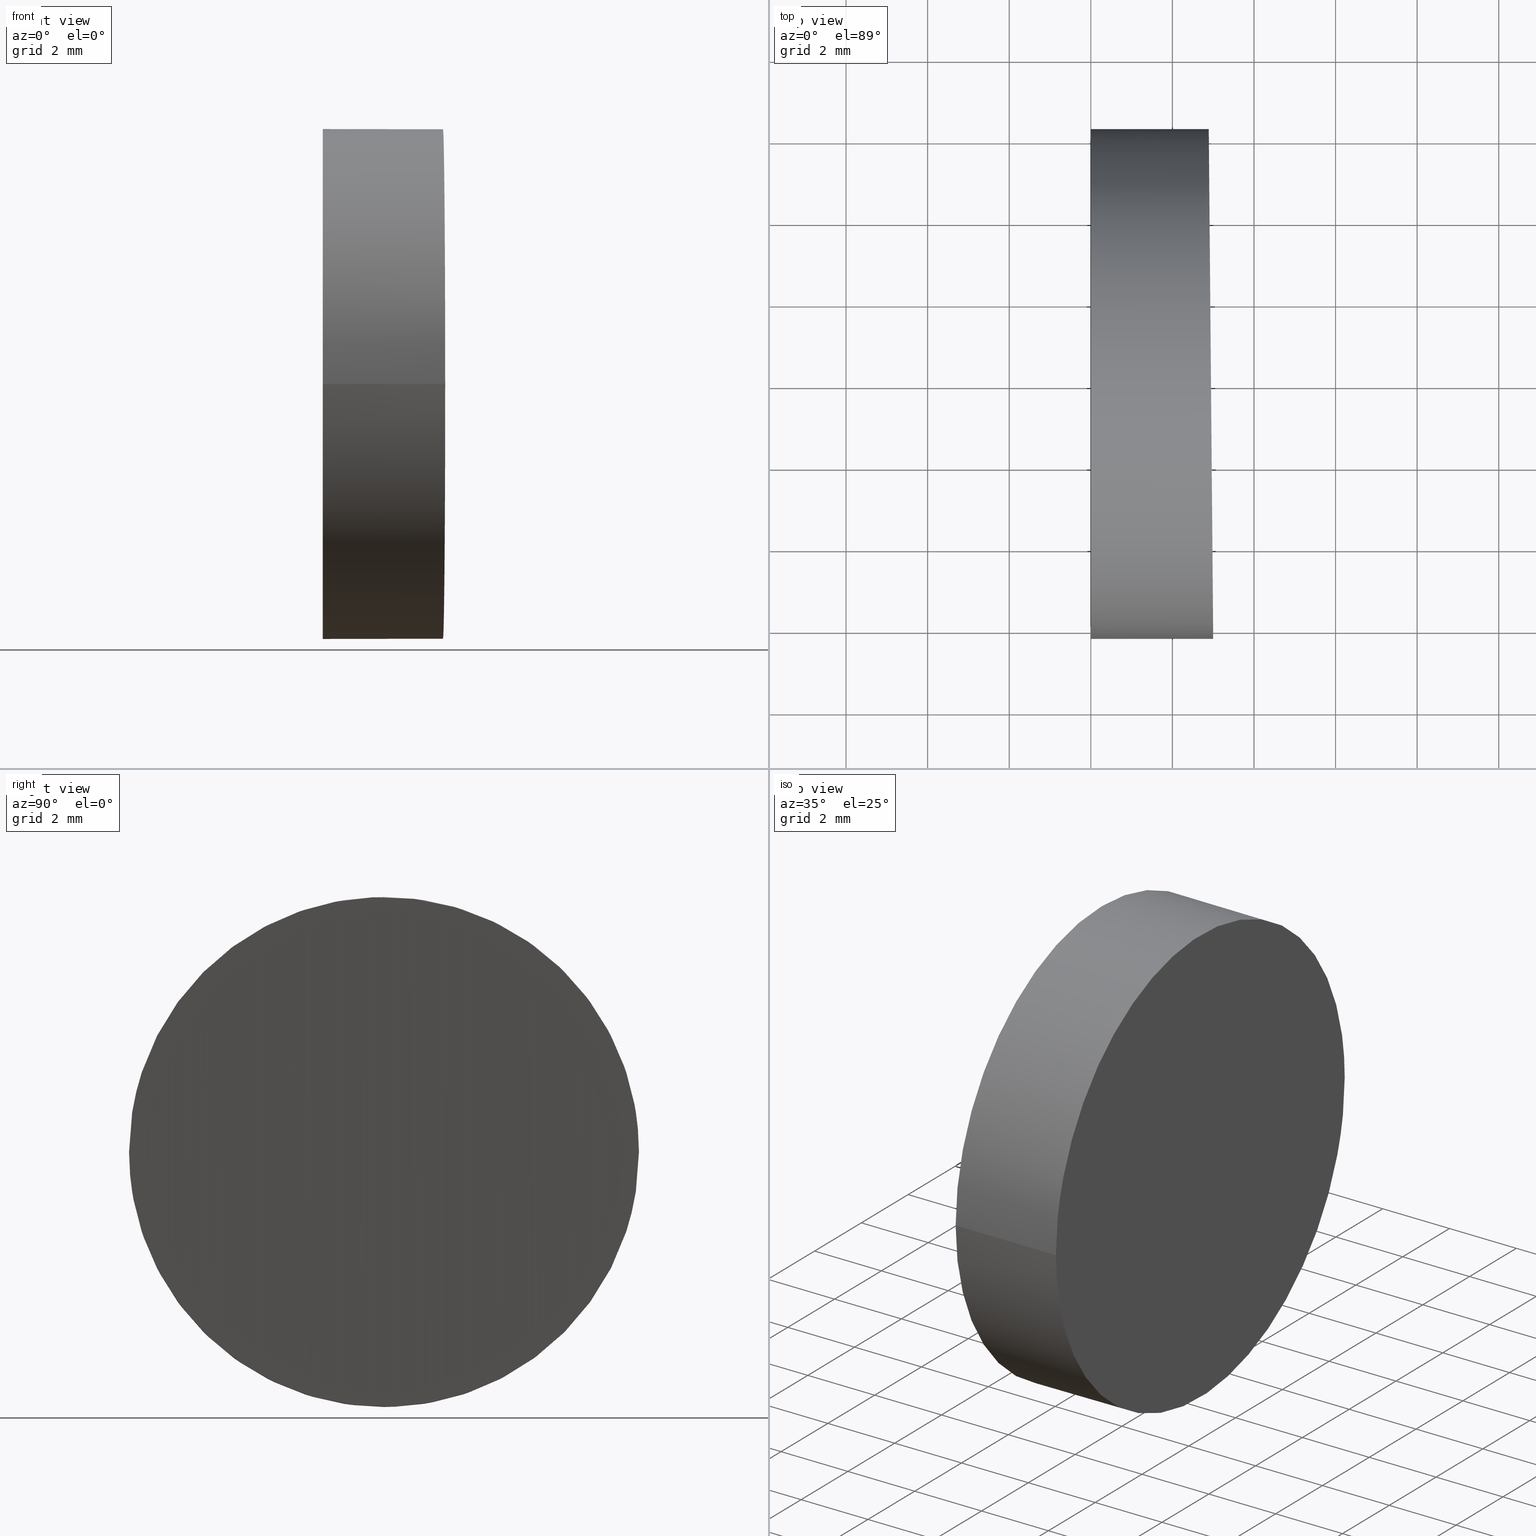
[diagram: canonical four-view strip — front | top / right | iso, engineering-drawing reading convention]
A machine part, canonical four-view strip (front | top / right | iso — engineering-drawing reading convention). The complete STEP part file that produces these views, byte-faithful:
ISO-10303-21;
HEADER;
FILE_DESCRIPTION (( 'STEP AP214' ),
    '1' );
FILE_NAME ('197500.STEP',
    '2019-07-08T05:02:53',
    ( 'user' ),
    ( '΢���й�' ),
    'SwSTEP 2.0',
    'SolidWorks 2016',
    '' );
FILE_SCHEMA (( 'AUTOMOTIVE_DESIGN' ));
ENDSEC;

DATA;
#1 =( GEOMETRIC_REPRESENTATION_CONTEXT ( 3 ) GLOBAL_UNCERTAINTY_ASSIGNED_CONTEXT ( ( #87 ) ) GLOBAL_UNIT_ASSIGNED_CONTEXT ( ( #131, #11, #85 ) ) REPRESENTATION_CONTEXT ( 'NONE', 'WORKASPACE' ) );
#2 = MECHANICAL_DESIGN_GEOMETRIC_PRESENTATION_REPRESENTATION (  '', ( #132 ), #14 ) ;
#3 = EDGE_CURVE ( 'NONE', #5, #15, #96, .T. ) ;
#4 = CARTESIAN_POINT ( 'NONE',  ( 2.890914152615603200, 6.250000000000002700, -6.250000000000008000 ) ) ;
#5 = VERTEX_POINT ( 'NONE', #78 ) ;
#6 =( NAMED_UNIT ( * ) PLANE_ANGLE_UNIT ( ) SI_UNIT ( $, .RADIAN. ) );
#7 = CARTESIAN_POINT ( 'NONE',  ( 3.000000000000001800, -6.250000000000002700, 6.250000000000000000 ) ) ;
#8 = ORIENTED_EDGE ( 'NONE', *, *, #30, .T. ) ;
#9 = DIRECTION ( 'NONE',  ( 0.0000000000000000000, 0.0000000000000000000, 1.000000000000000000 ) ) ;
#10 = AXIS2_PLACEMENT_3D ( 'NONE', #107, #123, #48 ) ;
#11 =( NAMED_UNIT ( * ) PLANE_ANGLE_UNIT ( ) SI_UNIT ( $, .RADIAN. ) );
#12 = ADVANCED_BREP_SHAPE_REPRESENTATION ( '197500', ( #62, #77 ), #1 ) ;
#13 = ADVANCED_FACE ( 'NONE', ( #45 ), #17, .F. ) ;
#14 =( GEOMETRIC_REPRESENTATION_CONTEXT ( 3 ) GLOBAL_UNCERTAINTY_ASSIGNED_CONTEXT ( ( #106 ) ) GLOBAL_UNIT_ASSIGNED_CONTEXT ( ( #92, #6, #80 ) ) REPRESENTATION_CONTEXT ( 'NONE', 'WORKASPACE' ) );
#15 = VERTEX_POINT ( 'NONE', #63 ) ;
#16 = VERTEX_POINT ( 'NONE', #101 ) ;
#17 = PLANE ( 'NONE',  #114 ) ;
#18 = DIRECTION ( 'NONE',  ( -1.000000000000000000, -1.224646799147353000E-016, 1.232595164407830900E-032 ) ) ;
#19 = SURFACE_STYLE_USAGE ( .BOTH. , #100 ) ;
#20 = FACE_OUTER_BOUND ( 'NONE', #60, .T. ) ;
#21 = AXIS2_PLACEMENT_3D ( 'NONE', #137, #64, #128 ) ;
#22 = ORIENTED_EDGE ( 'NONE', *, *, #73, .T. ) ;
#23 = SURFACE_STYLE_FILL_AREA ( #122 ) ;
#24 = PRODUCT_DEFINITION_SHAPE ( 'NONE', 'NONE',  #86 ) ;
#25 =( NAMED_UNIT ( * ) SI_UNIT ( $, .STERADIAN. ) SOLID_ANGLE_UNIT ( ) );
#26 = STYLED_ITEM ( 'NONE', ( #83 ), #12 ) ;
#27 = ORIENTED_EDGE ( 'NONE', *, *, #3, .T. ) ;
#28 = PRESENTATION_STYLE_ASSIGNMENT (( #19 ) ) ;
#29 = AXIS2_PLACEMENT_3D ( 'NONE', #98, #18, #91 ) ;
#30 = EDGE_CURVE ( 'NONE', #5, #134, #58, .T. ) ;
#31 = DIRECTION ( 'NONE',  ( -1.000000000000000000, -1.224646799147353200E-016, -0.0000000000000000000 ) ) ;
#32 = FILL_AREA_STYLE ('',( #54 ) ) ;
#33 = ORIENTED_EDGE ( 'NONE', *, *, #95, .F. ) ;
#34 =( LENGTH_UNIT ( ) NAMED_UNIT ( * ) SI_UNIT ( .MILLI., .METRE. ) );
#35 = EDGE_LOOP ( 'NONE', ( #8, #57, #111, #50 ) ) ;
#36 = PRESENTATION_LAYER_ASSIGNMENT (  '', '', ( #26 ) ) ;
#37 = CARTESIAN_POINT ( 'NONE',  ( 0.0000000000000000000, 0.0000000000000000000, 0.0000000000000000000 ) ) ;
#38 = ORIENTED_EDGE ( 'NONE', *, *, #89, .T. ) ;
#39 = UNCERTAINTY_MEASURE_WITH_UNIT (LENGTH_MEASURE( 1.000000000000000100E-005 ), #34, 'distance_accuracy_value', 'NONE');
#40 = PRODUCT_DEFINITION_FORMATION_WITH_SPECIFIED_SOURCE ( '�κ�', '', #125, .NOT_KNOWN. ) ;
#41 = EDGE_LOOP ( 'NONE', ( #88, #94 ) ) ;
#42 = CIRCLE ( 'NONE', #21, 6.250000000000002700 ) ;
#43 = MECHANICAL_DESIGN_GEOMETRIC_PRESENTATION_REPRESENTATION (  '', ( #26 ), #52 ) ;
#44 = DIRECTION ( 'NONE',  ( -0.9999619230641714200, -0.008726535498366983600, 0.0000000000000000000 ) ) ;
#45 = FACE_OUTER_BOUND ( 'NONE', #41, .T. ) ;
#46 = ADVANCED_FACE ( 'NONE', ( #133 ), #90, .T. ) ;
#47 = SURFACE_SIDE_STYLE ('',( #23 ) ) ;
#48 = DIRECTION ( 'NONE',  ( -1.224646799147353200E-016, 1.000000000000000000, 0.0000000000000000000 ) ) ;
#49 = PRODUCT_RELATED_PRODUCT_CATEGORY ( 'part', '', ( #125 ) ) ;
#50 = ORIENTED_EDGE ( 'NONE', *, *, #3, .F. ) ;
#51 = COLOUR_RGB ( '',1.000000000000000000, 1.000000000000000000, 1.000000000000000000 ) ;
#52 =( GEOMETRIC_REPRESENTATION_CONTEXT ( 3 ) GLOBAL_UNCERTAINTY_ASSIGNED_CONTEXT ( ( #39 ) ) GLOBAL_UNIT_ASSIGNED_CONTEXT ( ( #34, #102, #25 ) ) REPRESENTATION_CONTEXT ( 'NONE', 'WORKASPACE' ) );
#53 = SURFACE_STYLE_FILL_AREA ( #32 ) ;
#54 = FILL_AREA_STYLE_COLOUR ( '', #51 ) ;
#55 = CARTESIAN_POINT ( 'NONE',  ( 10.00000000000000000, 6.250000000000003600, 6.250000000000000900 ) ) ;
#56 = CARTESIAN_POINT ( 'NONE',  ( 2.890914152615602800, 6.250000000000002700, 6.250000000000000900 ) ) ;
#57 = ORIENTED_EDGE ( 'NONE', *, *, #95, .T. ) ;
#58 =( BOUNDED_CURVE ( )  B_SPLINE_CURVE ( 3, ( #7, #93, #138, #68 ),
 .UNSPECIFIED., .F., .T. ) 
 B_SPLINE_CURVE_WITH_KNOTS ( ( 4, 4 ),
 ( 3.141592653589793100, 6.283185307179586200 ),
 .UNSPECIFIED. ) 
 CURVE ( )  GEOMETRIC_REPRESENTATION_ITEM ( )  RATIONAL_B_SPLINE_CURVE ( ( 1.000000000000000000, 0.3333333333333333700, 0.3333333333333333700, 1.000000000000000000 ) ) 
 REPRESENTATION_ITEM ( '' )  );
#59 = APPLICATION_CONTEXT ( 'automotive_design' ) ;
#60 = EDGE_LOOP ( 'NONE', ( #33, #38, #27, #124 ) ) ;
#61 = PLANE ( 'NONE',  #10 ) ;
#62 = MANIFOLD_SOLID_BREP ( '�г�-����1', #74 ) ;
#63 = CARTESIAN_POINT ( 'NONE',  ( 7.654042494670959600E-016, -6.250000000000002700, 6.250000000000000000 ) ) ;
#64 = DIRECTION ( 'NONE',  ( -1.000000000000000000, -1.224646799147353000E-016, 1.232595164407830900E-032 ) ) ;
#65 = CARTESIAN_POINT ( 'NONE',  ( 10.00000000000000000, 1.224646799147353300E-015, 6.250000000000000000 ) ) ;
#66 = FACE_OUTER_BOUND ( 'NONE', #104, .T. ) ;
#67 = PRODUCT_DEFINITION_CONTEXT ( 'detailed design', #70, 'design' ) ;
#68 = CARTESIAN_POINT ( 'NONE',  ( 2.890914152615602800, 6.250000000000002700, 6.250000000000000900 ) ) ;
#69 = ADVANCED_FACE ( 'NONE', ( #20 ), #71, .T. ) ;
#70 = APPLICATION_CONTEXT ( 'automotive_design' ) ;
#71 = CYLINDRICAL_SURFACE ( 'NONE', #117, 6.250000000000002700 ) ;
#72 = APPLICATION_PROTOCOL_DEFINITION ( 'draft international standard', 'automotive_design', 1998, #59 ) ;
#73 = EDGE_CURVE ( 'NONE', #15, #16, #118, .T. ) ;
#74 = CLOSED_SHELL ( 'NONE', ( #46, #109, #13, #69 ) ) ;
#75 = LINE ( 'NONE', #55, #76 ) ;
#76 = VECTOR ( 'NONE', #31, 1000.000000000000000 ) ;
#77 = AXIS2_PLACEMENT_3D ( 'NONE', #37, #9, #84 ) ;
#78 = CARTESIAN_POINT ( 'NONE',  ( 3.000000000000001800, -6.250000000000002700, 6.250000000000000000 ) ) ;
#79 = DIRECTION ( 'NONE',  ( 0.0000000000000000000, -1.000000000000000000, 0.0000000000000000000 ) ) ;
#80 =( NAMED_UNIT ( * ) SI_UNIT ( $, .STERADIAN. ) SOLID_ANGLE_UNIT ( ) );
#81 = EDGE_CURVE ( 'NONE', #16, #15, #42, .T. ) ;
#82 = DIRECTION ( 'NONE',  ( -1.000000000000000000, -1.224646799147353200E-016, -0.0000000000000000000 ) ) ;
#83 = PRESENTATION_STYLE_ASSIGNMENT (( #112 ) ) ;
#84 = DIRECTION ( 'NONE',  ( 1.000000000000000000, 0.0000000000000000000, 0.0000000000000000000 ) ) ;
#85 =( NAMED_UNIT ( * ) SI_UNIT ( $, .STERADIAN. ) SOLID_ANGLE_UNIT ( ) );
#86 = PRODUCT_DEFINITION ( 'δ֪', '', #40, #67 ) ;
#87 = UNCERTAINTY_MEASURE_WITH_UNIT (LENGTH_MEASURE( 1.000000000000000100E-005 ), #131, 'distance_accuracy_value', 'NONE');
#88 = ORIENTED_EDGE ( 'NONE', *, *, #30, .F. ) ;
#89 = EDGE_CURVE ( 'NONE', #134, #5, #129, .T. ) ;
#90 = CYLINDRICAL_SURFACE ( 'NONE', #139, 6.250000000000002700 ) ;
#91 = DIRECTION ( 'NONE',  ( 1.224646799147353000E-016, -1.000000000000000000, 0.0000000000000000000 ) ) ;
#92 =( LENGTH_UNIT ( ) NAMED_UNIT ( * ) SI_UNIT ( .MILLI., .METRE. ) );
#93 = CARTESIAN_POINT ( 'NONE',  ( 3.000000000000001800, -6.250000000000005300, 18.75000000000000700 ) ) ;
#94 = ORIENTED_EDGE ( 'NONE', *, *, #89, .F. ) ;
#95 = EDGE_CURVE ( 'NONE', #134, #16, #75, .T. ) ;
#96 = LINE ( 'NONE', #97, #126 ) ;
#97 = CARTESIAN_POINT ( 'NONE',  ( 10.00000000000000000, -6.250000000000001800, 6.250000000000000000 ) ) ;
#98 = CARTESIAN_POINT ( 'NONE',  ( 0.0000000000000000000, 0.0000000000000000000, 6.250000000000000000 ) ) ;
#99 = ORIENTED_EDGE ( 'NONE', *, *, #81, .T. ) ;
#100 = SURFACE_SIDE_STYLE ('',( #53 ) ) ;
#101 = CARTESIAN_POINT ( 'NONE',  ( -7.654042494670959600E-016, 6.250000000000002700, 6.250000000000000900 ) ) ;
#102 =( NAMED_UNIT ( * ) PLANE_ANGLE_UNIT ( ) SI_UNIT ( $, .RADIAN. ) );
#103 = CARTESIAN_POINT ( 'NONE',  ( 2.890914152615602800, 6.250000000000002700, 6.250000000000000900 ) ) ;
#104 = EDGE_LOOP ( 'NONE', ( #22, #99 ) ) ;
#105 = PRESENTATION_LAYER_ASSIGNMENT (  '', '', ( #132 ) ) ;
#106 = UNCERTAINTY_MEASURE_WITH_UNIT (LENGTH_MEASURE( 1.000000000000000100E-005 ), #92, 'distance_accuracy_value', 'NONE');
#107 = CARTESIAN_POINT ( 'NONE',  ( 2.039149770426155000E-016, 6.249999999999998200, 12.50000000000000000 ) ) ;
#108 = DIRECTION ( 'NONE',  ( 0.0000000000000000000, -1.000000000000000000, 0.0000000000000000000 ) ) ;
#109 = ADVANCED_FACE ( 'NONE', ( #66 ), #61, .F. ) ;
#110 = DIRECTION ( 'NONE',  ( 0.008726535498366981900, -0.9999619230641713100, 0.0000000000000000000 ) ) ;
#111 = ORIENTED_EDGE ( 'NONE', *, *, #73, .F. ) ;
#112 = SURFACE_STYLE_USAGE ( .BOTH. , #47 ) ;
#113 = FILL_AREA_STYLE_COLOUR ( '', #119 ) ;
#114 = AXIS2_PLACEMENT_3D ( 'NONE', #135, #44, #110 ) ;
#115 = CARTESIAN_POINT ( 'NONE',  ( 3.000000000000001800, -6.250000000000002700, 6.250000000000000000 ) ) ;
#116 = CARTESIAN_POINT ( 'NONE',  ( 3.000000000000001800, -6.250000000000002700, -6.250000000000008000 ) ) ;
#117 = AXIS2_PLACEMENT_3D ( 'NONE', #65, #120, #108 ) ;
#118 = CIRCLE ( 'NONE', #29, 6.250000000000002700 ) ;
#119 = COLOUR_RGB ( '',1.000000000000000000, 1.000000000000000000, 1.000000000000000000 ) ;
#120 = DIRECTION ( 'NONE',  ( -1.000000000000000000, -1.224646799147353200E-016, -0.0000000000000000000 ) ) ;
#121 = SHAPE_DEFINITION_REPRESENTATION ( #24, #12 ) ;
#122 = FILL_AREA_STYLE ('',( #113 ) ) ;
#123 = DIRECTION ( 'NONE',  ( 1.000000000000000000, 1.224646799147353200E-016, -0.0000000000000000000 ) ) ;
#124 = ORIENTED_EDGE ( 'NONE', *, *, #81, .F. ) ;
#125 = PRODUCT ( '197500', '197500', '', ( #140 ) ) ;
#126 = VECTOR ( 'NONE', #127, 1000.000000000000000 ) ;
#127 = DIRECTION ( 'NONE',  ( -1.000000000000000000, -1.224646799147353200E-016, -0.0000000000000000000 ) ) ;
#128 = DIRECTION ( 'NONE',  ( 1.224646799147353000E-016, -1.000000000000000000, 0.0000000000000000000 ) ) ;
#129 =( BOUNDED_CURVE ( )  B_SPLINE_CURVE ( 3, ( #56, #4, #116, #115 ),
 .UNSPECIFIED., .F., .F. ) 
 B_SPLINE_CURVE_WITH_KNOTS ( ( 4, 4 ),
 ( 0.0000000000000000000, 3.141592653589793100 ),
 .UNSPECIFIED. ) 
 CURVE ( )  GEOMETRIC_REPRESENTATION_ITEM ( )  RATIONAL_B_SPLINE_CURVE ( ( 1.000000000000000000, 0.3333333333333333700, 0.3333333333333333700, 1.000000000000000000 ) ) 
 REPRESENTATION_ITEM ( '' )  );
#130 = APPLICATION_PROTOCOL_DEFINITION ( 'draft international standard', 'automotive_design', 1998, #70 ) ;
#131 =( LENGTH_UNIT ( ) NAMED_UNIT ( * ) SI_UNIT ( .MILLI., .METRE. ) );
#132 = STYLED_ITEM ( 'NONE', ( #28 ), #62 ) ;
#133 = FACE_OUTER_BOUND ( 'NONE', #35, .T. ) ;
#134 = VERTEX_POINT ( 'NONE', #103 ) ;
#135 = CARTESIAN_POINT ( 'NONE',  ( 3.000000000000001800, -6.250000000000001800, 12.50000000000000000 ) ) ;
#136 = CARTESIAN_POINT ( 'NONE',  ( 10.00000000000000000, 1.224646799147353300E-015, 6.250000000000000000 ) ) ;
#137 = CARTESIAN_POINT ( 'NONE',  ( 0.0000000000000000000, 0.0000000000000000000, 6.250000000000000000 ) ) ;
#138 = CARTESIAN_POINT ( 'NONE',  ( 2.890914152615603200, 6.250000000000002700, 18.75000000000001100 ) ) ;
#139 = AXIS2_PLACEMENT_3D ( 'NONE', #136, #82, #79 ) ;
#140 = PRODUCT_CONTEXT ( 'NONE', #59, 'mechanical' ) ;
ENDSEC;
END-ISO-10303-21;
